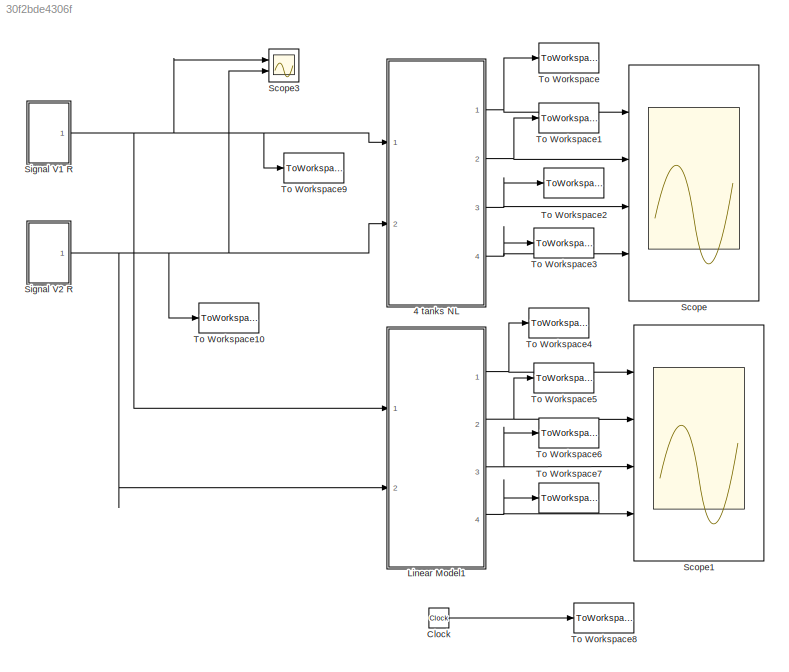
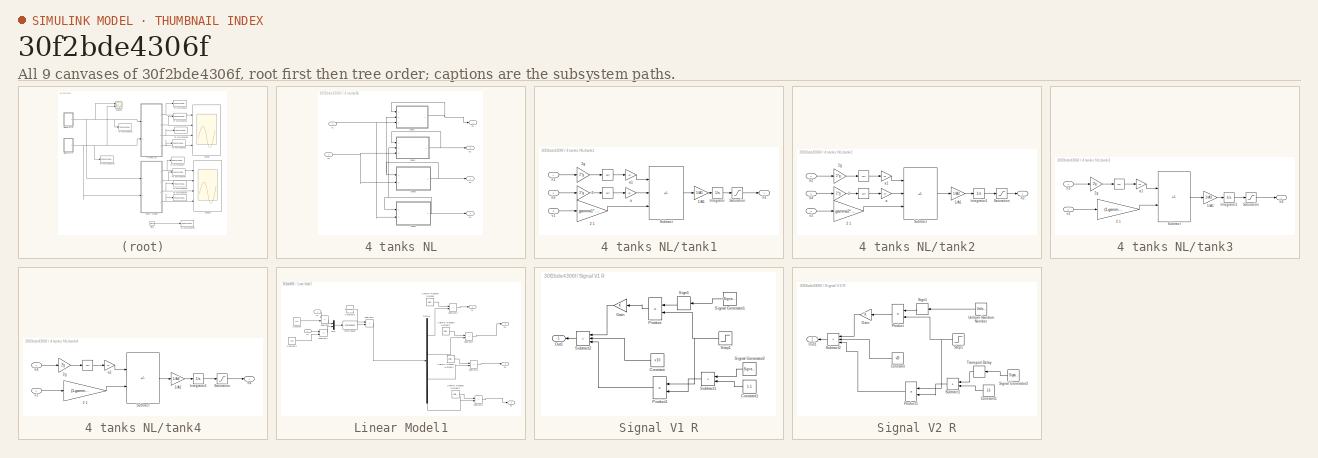
[diagram: thumbnail index - all 9 canvases of the model, root first then tree order]
MODEL slx_30f2bde4306f
KIND model
CONFIG AbsTol = auto
CONFIG EnableMultiTasking = on
CONFIG FixedStep = Ts
CONFIG MaxStep = auto
CONFIG MinStep = auto
CONFIG RelTol = 1e-3
CONFIG SampleTimeConstraint = Unconstrained
CONFIG SolverName = ode45
CONFIG StartTime = 0.0
CONFIG StopTime = 600
BLOCK [SubSystem] 4 tanks NL
  Ports = [2, 4]
  RequestExecContextInheritance = off
BLOCK [Outport] 4 tanks NL/h1 
BLOCK [Outport] 4 tanks NL/h2 
  Port = 2
BLOCK [Outport] 4 tanks NL/h3 
  Port = 3
BLOCK [Outport] 4 tanks NL/h4 
  Port = 4
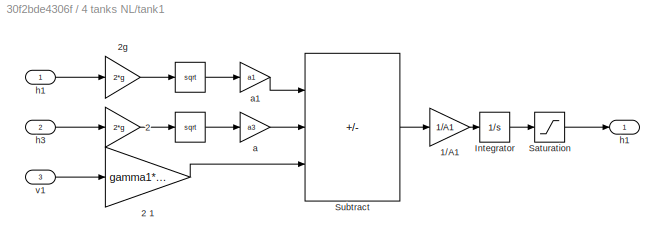
BLOCK [SubSystem] 4 tanks NL/tank1
  Ports = [3, 1]
  RequestExecContextInheritance = off
BLOCK [Math] 4 tanks NL/tank1/ 
  Operator = sqrt
  Ports = [1, 1]
  SignedPower = on
BLOCK [Math] 4 tanks NL/tank1/   
  Operator = sqrt
  Ports = [1, 1]
  SignedPower = on
BLOCK [Gain] 4 tanks NL/tank1/1//A1
  Gain = 1/A1
BLOCK [Gain] 4 tanks NL/tank1/2 
  Gain = 2*g
BLOCK [Gain] 4 tanks NL/tank1/2 1
  Gain = gamma1*k1
BLOCK [Gain] 4 tanks NL/tank1/2g
  Gain = 2*g
BLOCK [Integrator] 4 tanks NL/tank1/Integrator
  InitialCondition = h10
  Ports = [1, 1]
BLOCK [Saturate] 4 tanks NL/tank1/Saturation
  LowerLimit = 0
  UpperLimit = 20
BLOCK [Sum] 4 tanks NL/tank1/Subtract
  IconShape = rectangular
  Inputs = -++
  Ports = [3, 1]
BLOCK [Gain] 4 tanks NL/tank1/a
  Gain = a3
BLOCK [Gain] 4 tanks NL/tank1/a1
  Gain = a1
BLOCK [Inport] 4 tanks NL/tank1/h1
BLOCK [Outport] 4 tanks NL/tank1/h1 
BLOCK [Inport] 4 tanks NL/tank1/h3
  Port = 2
BLOCK [Inport] 4 tanks NL/tank1/v1
  Port = 3
BLOCK [SubSystem] 4 tanks NL/tank2
  Ports = [3, 1]
  RequestExecContextInheritance = off
BLOCK [Math] 4 tanks NL/tank2/ 
  Operator = sqrt
  Ports = [1, 1]
  SignedPower = on
BLOCK [Math] 4 tanks NL/tank2/   
  Operator = sqrt
  Ports = [1, 1]
  SignedPower = on
BLOCK [Gain] 4 tanks NL/tank2/1//A1
  Gain = 1/A2
BLOCK [Gain] 4 tanks NL/tank2/2 
  Gain = 2*g
BLOCK [Gain] 4 tanks NL/tank2/2 1
  Gain = gamma2*k2
BLOCK [Gain] 4 tanks NL/tank2/2g
  Gain = 2*g
BLOCK [Integrator] 4 tanks NL/tank2/Integrator1
  InitialCondition = h20
  Ports = [1, 1]
BLOCK [Saturate] 4 tanks NL/tank2/Saturation
  LowerLimit = 0
  UpperLimit = 20
BLOCK [Sum] 4 tanks NL/tank2/Subtract
  IconShape = rectangular
  Inputs = -++
  Ports = [3, 1]
BLOCK [Gain] 4 tanks NL/tank2/a
  Gain = a4
BLOCK [Gain] 4 tanks NL/tank2/a1
  Gain = a2
BLOCK [Inport] 4 tanks NL/tank2/h2
BLOCK [Outport] 4 tanks NL/tank2/h2 
BLOCK [Inport] 4 tanks NL/tank2/h4
  Port = 2
BLOCK [Inport] 4 tanks NL/tank2/v2
  Port = 3
BLOCK [SubSystem] 4 tanks NL/tank3
  Ports = [2, 1]
  RequestExecContextInheritance = off
BLOCK [Math] 4 tanks NL/tank3/ 
  Operator = sqrt
  Ports = [1, 1]
  SignedPower = on
BLOCK [Gain] 4 tanks NL/tank3/1//A1
  Gain = 1/A3
BLOCK [Gain] 4 tanks NL/tank3/2 1
  Gain = (1-gamma2)*k2
BLOCK [Gain] 4 tanks NL/tank3/2g
  Gain = 2*g
BLOCK [Integrator] 4 tanks NL/tank3/Integrator1
  InitialCondition = h30
  Ports = [1, 1]
BLOCK [Saturate] 4 tanks NL/tank3/Saturation
  LowerLimit = 0
  UpperLimit = 20
BLOCK [Sum] 4 tanks NL/tank3/Subtract
  IconShape = rectangular
  Inputs = -+
  Ports = [2, 1]
BLOCK [Gain] 4 tanks NL/tank3/a1
  Gain = a3
BLOCK [Inport] 4 tanks NL/tank3/h3
BLOCK [Outport] 4 tanks NL/tank3/h3 
BLOCK [Inport] 4 tanks NL/tank3/v2
  Port = 2
BLOCK [SubSystem] 4 tanks NL/tank4
  Ports = [2, 1]
  RequestExecContextInheritance = off
BLOCK [Math] 4 tanks NL/tank4/ 
  Operator = sqrt
  Ports = [1, 1]
  SignedPower = on
BLOCK [Gain] 4 tanks NL/tank4/1//A1
  Gain = 1/A4
BLOCK [Gain] 4 tanks NL/tank4/2 1
  Gain = (1-gamma1)*k1
BLOCK [Gain] 4 tanks NL/tank4/2g
  Gain = 2*g
BLOCK [Integrator] 4 tanks NL/tank4/Integrator1
  InitialCondition = h40
  Ports = [1, 1]
BLOCK [Saturate] 4 tanks NL/tank4/Saturation
  LowerLimit = 0
  UpperLimit = 20
BLOCK [Sum] 4 tanks NL/tank4/Subtract
  IconShape = rectangular
  Inputs = -+
  Ports = [2, 1]
BLOCK [Gain] 4 tanks NL/tank4/a1
  Gain = a4
BLOCK [Inport] 4 tanks NL/tank4/h4
BLOCK [Outport] 4 tanks NL/tank4/h4 
BLOCK [Inport] 4 tanks NL/tank4/v1
  Port = 2
BLOCK [Inport] 4 tanks NL/v1
BLOCK [Inport] 4 tanks NL/v2
  Port = 2
BLOCK [Clock] Clock
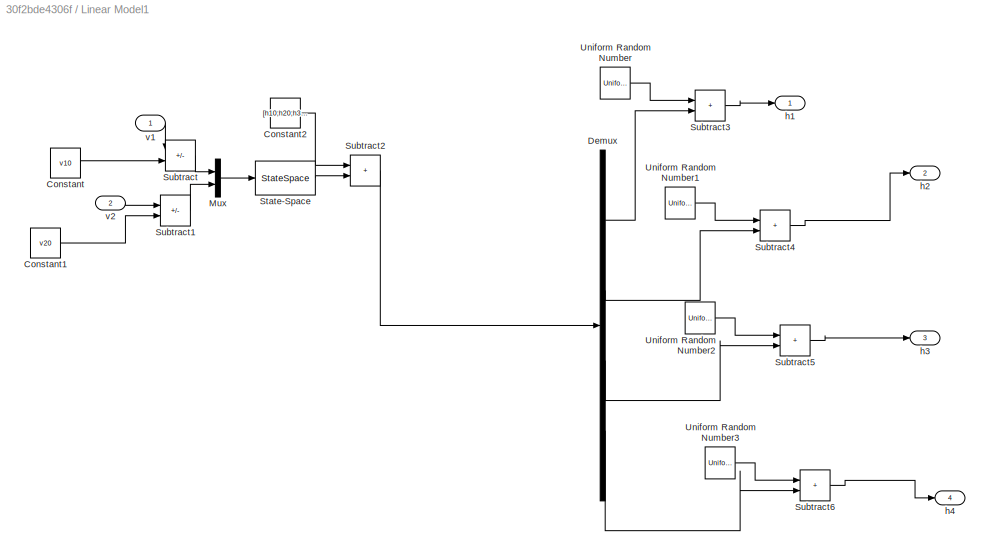
BLOCK [SubSystem] Linear Model1
  Ports = [2, 4]
  RequestExecContextInheritance = off
BLOCK [Constant] Linear Model1/Constant
  Value = v10
BLOCK [Constant] Linear Model1/Constant1
  Value = v20
BLOCK [Constant] Linear Model1/Constant2
  Value = [h10;h20;h30;h40]
BLOCK [Demux] Linear Model1/Demux
  Ports = [1, 4]
BLOCK [Mux] Linear Model1/Mux
  DisplayOption = bar
  Inputs = 2
  Ports = [2, 1]
BLOCK [StateSpace] Linear Model1/State-Space
  A = A
  B = B
  C = C
  D = D
  InitialCondition = 0
  Ports = [1, 1]
BLOCK [Sum] Linear Model1/Subtract
  IconShape = rectangular
  Inputs = +-
  Ports = [2, 1]
BLOCK [Sum] Linear Model1/Subtract1
  IconShape = rectangular
  Inputs = +-
  Ports = [2, 1]
BLOCK [Sum] Linear Model1/Subtract2
  IconShape = rectangular
  Ports = [2, 1]
BLOCK [Sum] Linear Model1/Subtract3
  IconShape = rectangular
  Ports = [2, 1]
BLOCK [Sum] Linear Model1/Subtract4
  IconShape = rectangular
  Ports = [2, 1]
BLOCK [Sum] Linear Model1/Subtract5
  IconShape = rectangular
  Ports = [2, 1]
BLOCK [Sum] Linear Model1/Subtract6
  IconShape = rectangular
  Ports = [2, 1]
BLOCK [UniformRandomNumber] Linear Model1/Uniform Random Number
  Maximum = de
  Minimum = -de
  SampleTime = Ts
  Seed = seed(1)
BLOCK [UniformRandomNumber] Linear Model1/Uniform Random Number1
  Maximum = de
  Minimum = -de
  SampleTime = Ts
  Seed = seed(2)
BLOCK [UniformRandomNumber] Linear Model1/Uniform Random Number2
  Maximum = de
  Minimum = -de
  SampleTime = Ts
  Seed = seed(3)
BLOCK [UniformRandomNumber] Linear Model1/Uniform Random Number3
  Maximum = de
  Minimum = -de
  SampleTime = Ts
  Seed = seed(4)
BLOCK [Outport] Linear Model1/h1
BLOCK [Outport] Linear Model1/h2
  Port = 2
BLOCK [Outport] Linear Model1/h3
  Port = 3
BLOCK [Outport] Linear Model1/h4
  Port = 4
BLOCK [Inport] Linear Model1/v1
BLOCK [Inport] Linear Model1/v2
  Port = 2
BLOCK [Scope] Scope
  Floating = off
  NumInputPorts = 4
  Ports = [4]
  ScopeSpecificationString = Simulink.scopes.TimeScopeBlockCfg('CurrentConfiguration', extmgr.ConfigurationSet(extmgr.Configuration('Core','General UI',true),extmgr.Configuration('Core','Source UI',true),extmgr.Configuration('Sources','WiredSimulink',true,'DataLogging',true,'DataLoggingVariableName','levels','DataLoggingSaveFormat','StructureWithTime','DataLoggingDecimation','1','DataLoggingDecimateData',true),extmgr.Configur...<+3668ch>
BLOCK [Scope] Scope1
  Floating = off
  NumInputPorts = 4
  Ports = [4]
  ScopeSpecificationString = Simulink.scopes.TimeScopeBlockCfg('CurrentConfiguration', extmgr.ConfigurationSet(extmgr.Configuration('Core','General UI',true),extmgr.Configuration('Core','Source UI',true),extmgr.Configuration('Sources','WiredSimulink',true,'DataLogging',true,'DataLoggingVariableName','levels1','DataLoggingSaveFormat','StructureWithTime','DataLoggingDecimation','1','DataLoggingDecimateData',true),extmgr.Configu...<+3677ch>
BLOCK [Scope] Scope3
  Floating = off
  NumInputPorts = 2
  Ports = [2]
  ScopeSpecificationString = Simulink.scopes.TimeScopeBlockCfg('CurrentConfiguration', extmgr.ConfigurationSet(extmgr.Configuration('Core','General UI',true),extmgr.Configuration('Core','Source UI',true),extmgr.Configuration('Sources','WiredSimulink',true,'DataLoggingSaveFormat','StructureWithTime','DataLoggingLimitDataPoints',true,'DataLoggingDecimation','1','DataLoggingDecimateData',true),extmgr.Configuration('Visuals','Tim...<+2315ch>
BLOCK [SubSystem] Signal V1 R
  NameLocation = top
  Ports = [0, 1]
  RequestExecContextInheritance = off
BLOCK [Constant] Signal V1 R/Constant
  Value = v10
BLOCK [Constant] Signal V1 R/Constant1
  Value = 1.1
BLOCK [Gain] Signal V1 R/Gain
  NameLocation = top
BLOCK [Outport] Signal V1 R/Out1
BLOCK [Product] Signal V1 R/Product
  Ports = [2, 1]
  RndMeth = Zero
BLOCK [Product] Signal V1 R/Product1
  Ports = [2, 1]
  RndMeth = Zero
BLOCK [Signum] Signal V1 R/Sign1
BLOCK [SignalGenerator] Signal V1 R/Signal Generator1
  Amplitude = 1.8
  Frequency = 200
  NameLocation = top
  Ports = [0, 1]
  WaveForm = random
BLOCK [SignalGenerator] Signal V1 R/Signal Generator2
  Amplitude = 1.1
  Frequency = 0.005
  NameLocation = top
  Ports = [0, 1]
  WaveForm = sawtooth
BLOCK [Step] Signal V1 R/Step1
  SampleTime = 0
  Time = 10
BLOCK [Sum] Signal V1 R/Subtract1
  IconShape = rectangular
  Ports = [2, 1]
BLOCK [Sum] Signal V1 R/Subtract2
  IconShape = rectangular
  Inputs = +++
  Ports = [3, 1]
BLOCK [SubSystem] Signal V2 R
  NameLocation = top
  Ports = [0, 1]
  RequestExecContextInheritance = off
BLOCK [Constant] Signal V2 R/Constant
  Value = v20
BLOCK [Constant] Signal V2 R/Constant1
  Value = 1.6
BLOCK [Gain] Signal V2 R/Gain
  NameLocation = top
BLOCK [Outport] Signal V2 R/Out1
BLOCK [Product] Signal V2 R/Product
  Ports = [2, 1]
  RndMeth = Zero
BLOCK [Product] Signal V2 R/Product1
  Ports = [2, 1]
  RndMeth = Zero
BLOCK [Signum] Signal V2 R/Sign1
BLOCK [SignalGenerator] Signal V2 R/Signal Generator2
  Amplitude = 1.6
  Frequency = 0.005
  NameLocation = top
  Ports = [0, 1]
  WaveForm = sawtooth
BLOCK [Step] Signal V2 R/Step1
  SampleTime = 0
  Time = 10
BLOCK [Sum] Signal V2 R/Subtract1
  IconShape = rectangular
  Ports = [2, 1]
BLOCK [Sum] Signal V2 R/Subtract2
  IconShape = rectangular
  Inputs = +++
  Ports = [3, 1]
BLOCK [TransportDelay] Signal V2 R/Transport Delay
  DelayTime = 100
  NameLocation = top
  Ports = [1, 1]
BLOCK [UniformRandomNumber] Signal V2 R/Uniform Random Number
  NameLocation = top
  SampleTime = Ts
BLOCK [ToWorkspace] To Workspace
  MaxDataPoints = inf
  Ports = [1]
  SampleTime = Ts
  VariableName = h1
BLOCK [ToWorkspace] To Workspace1
  MaxDataPoints = inf
  Ports = [1]
  SampleTime = Ts
  VariableName = h2
BLOCK [ToWorkspace] To Workspace10
  MaxDataPoints = inf
  Ports = [1]
  SampleTime = Ts
  VariableName = v2
BLOCK [ToWorkspace] To Workspace2
  MaxDataPoints = inf
  Ports = [1]
  SampleTime = Ts
  VariableName = h3
BLOCK [ToWorkspace] To Workspace3
  MaxDataPoints = inf
  Ports = [1]
  SampleTime = Ts
  VariableName = h4
BLOCK [ToWorkspace] To Workspace4
  MaxDataPoints = inf
  Ports = [1]
  SampleTime = Ts
  VariableName = h1_lin
BLOCK [ToWorkspace] To Workspace5
  MaxDataPoints = inf
  Ports = [1]
  SampleTime = Ts
  VariableName = h2_lin
BLOCK [ToWorkspace] To Workspace6
  MaxDataPoints = inf
  Ports = [1]
  SampleTime = Ts
  VariableName = h3_lin
BLOCK [ToWorkspace] To Workspace7
  MaxDataPoints = inf
  Ports = [1]
  SampleTime = Ts
  VariableName = h4_lin
BLOCK [ToWorkspace] To Workspace8
  MaxDataPoints = inf
  Ports = [1]
  SampleTime = Ts
  VariableName = time
BLOCK [ToWorkspace] To Workspace9
  MaxDataPoints = inf
  Ports = [1]
  SampleTime = Ts
  VariableName = v1
LINE 4 tanks NL/tank1/   :1 -> 4 tanks NL/tank1/a:1
LINE 4 tanks NL/tank1/ :1 -> 4 tanks NL/tank1/a1:1
LINE 4 tanks NL/tank1/1//A1:1 -> 4 tanks NL/tank1/Integrator:1
LINE 4 tanks NL/tank1/2 1:1 -> 4 tanks NL/tank1/Subtract:3
LINE 4 tanks NL/tank1/2 :1 -> 4 tanks NL/tank1/   :1
LINE 4 tanks NL/tank1/2g:1 -> 4 tanks NL/tank1/ :1
LINE 4 tanks NL/tank1/Integrator:1 -> 4 tanks NL/tank1/Saturation:1
LINE 4 tanks NL/tank1/Saturation:1 -> 4 tanks NL/tank1/h1 :1
LINE 4 tanks NL/tank1/Subtract:1 -> 4 tanks NL/tank1/1//A1:1
LINE 4 tanks NL/tank1/a1:1 -> 4 tanks NL/tank1/Subtract:1
LINE 4 tanks NL/tank1/a:1 -> 4 tanks NL/tank1/Subtract:2
LINE 4 tanks NL/tank1/h1:1 -> 4 tanks NL/tank1/2g:1
LINE 4 tanks NL/tank1/h3:1 -> 4 tanks NL/tank1/2 :1
LINE 4 tanks NL/tank1/v1:1 -> 4 tanks NL/tank1/2 1:1
NET 4 tanks NL/tank1:1 -> 4 tanks NL/h1 :1, 4 tanks NL/tank1:1
LINE 4 tanks NL/tank2/   :1 -> 4 tanks NL/tank2/a:1
LINE 4 tanks NL/tank2/ :1 -> 4 tanks NL/tank2/a1:1
LINE 4 tanks NL/tank2/1//A1:1 -> 4 tanks NL/tank2/Integrator1:1
LINE 4 tanks NL/tank2/2 1:1 -> 4 tanks NL/tank2/Subtract:3
LINE 4 tanks NL/tank2/2 :1 -> 4 tanks NL/tank2/   :1
LINE 4 tanks NL/tank2/2g:1 -> 4 tanks NL/tank2/ :1
LINE 4 tanks NL/tank2/Integrator1:1 -> 4 tanks NL/tank2/Saturation:1
LINE 4 tanks NL/tank2/Saturation:1 -> 4 tanks NL/tank2/h2 :1
LINE 4 tanks NL/tank2/Subtract:1 -> 4 tanks NL/tank2/1//A1:1
LINE 4 tanks NL/tank2/a1:1 -> 4 tanks NL/tank2/Subtract:1
LINE 4 tanks NL/tank2/a:1 -> 4 tanks NL/tank2/Subtract:2
LINE 4 tanks NL/tank2/h2:1 -> 4 tanks NL/tank2/2g:1
LINE 4 tanks NL/tank2/h4:1 -> 4 tanks NL/tank2/2 :1
LINE 4 tanks NL/tank2/v2:1 -> 4 tanks NL/tank2/2 1:1
NET 4 tanks NL/tank2:1 -> 4 tanks NL/h2 :1, 4 tanks NL/tank2:1
LINE 4 tanks NL/tank3/ :1 -> 4 tanks NL/tank3/a1:1
LINE 4 tanks NL/tank3/1//A1:1 -> 4 tanks NL/tank3/Integrator1:1
LINE 4 tanks NL/tank3/2 1:1 -> 4 tanks NL/tank3/Subtract:2
LINE 4 tanks NL/tank3/2g:1 -> 4 tanks NL/tank3/ :1
LINE 4 tanks NL/tank3/Integrator1:1 -> 4 tanks NL/tank3/Saturation:1
LINE 4 tanks NL/tank3/Saturation:1 -> 4 tanks NL/tank3/h3 :1
LINE 4 tanks NL/tank3/Subtract:1 -> 4 tanks NL/tank3/1//A1:1
LINE 4 tanks NL/tank3/a1:1 -> 4 tanks NL/tank3/Subtract:1
LINE 4 tanks NL/tank3/h3:1 -> 4 tanks NL/tank3/2g:1
LINE 4 tanks NL/tank3/v2:1 -> 4 tanks NL/tank3/2 1:1
NET 4 tanks NL/tank3:1 -> 4 tanks NL/h3 :1, 4 tanks NL/tank1:2, 4 tanks NL/tank3:1
LINE 4 tanks NL/tank4/ :1 -> 4 tanks NL/tank4/a1:1
LINE 4 tanks NL/tank4/1//A1:1 -> 4 tanks NL/tank4/Integrator1:1
LINE 4 tanks NL/tank4/2 1:1 -> 4 tanks NL/tank4/Subtract:2
LINE 4 tanks NL/tank4/2g:1 -> 4 tanks NL/tank4/ :1
LINE 4 tanks NL/tank4/Integrator1:1 -> 4 tanks NL/tank4/Saturation:1
LINE 4 tanks NL/tank4/Saturation:1 -> 4 tanks NL/tank4/h4 :1
LINE 4 tanks NL/tank4/Subtract:1 -> 4 tanks NL/tank4/1//A1:1
LINE 4 tanks NL/tank4/a1:1 -> 4 tanks NL/tank4/Subtract:1
LINE 4 tanks NL/tank4/h4:1 -> 4 tanks NL/tank4/2g:1
LINE 4 tanks NL/tank4/v1:1 -> 4 tanks NL/tank4/2 1:1
NET 4 tanks NL/tank4:1 -> 4 tanks NL/h4 :1, 4 tanks NL/tank2:2, 4 tanks NL/tank4:1
NET 4 tanks NL/v1:1 -> 4 tanks NL/tank1:3, 4 tanks NL/tank4:2
NET 4 tanks NL/v2:1 -> 4 tanks NL/tank2:3, 4 tanks NL/tank3:2
NET 4 tanks NL:1 -> Scope:1, To Workspace:1
NET 4 tanks NL:2 -> Scope:2, To Workspace1:1
NET 4 tanks NL:3 -> Scope:3, To Workspace2:1
NET 4 tanks NL:4 -> Scope:4, To Workspace3:1
LINE Clock:1 -> To Workspace8:1
LINE Linear Model1/Constant1:1 -> Linear Model1/Subtract1:2
LINE Linear Model1/Constant2:1 -> Linear Model1/Subtract2:1
LINE Linear Model1/Constant:1 -> Linear Model1/Subtract:2
LINE Linear Model1/Demux:1 -> Linear Model1/Subtract3:2
LINE Linear Model1/Demux:2 -> Linear Model1/Subtract4:2
LINE Linear Model1/Demux:3 -> Linear Model1/Subtract5:2
LINE Linear Model1/Demux:4 -> Linear Model1/Subtract6:2
LINE Linear Model1/Mux:1 -> Linear Model1/State-Space:1
LINE Linear Model1/State-Space:1 -> Linear Model1/Subtract2:2
LINE Linear Model1/Subtract1:1 -> Linear Model1/Mux:2
LINE Linear Model1/Subtract2:1 -> Linear Model1/Demux:1
LINE Linear Model1/Subtract3:1 -> Linear Model1/h1:1
LINE Linear Model1/Subtract4:1 -> Linear Model1/h2:1
LINE Linear Model1/Subtract5:1 -> Linear Model1/h3:1
LINE Linear Model1/Subtract6:1 -> Linear Model1/h4:1
LINE Linear Model1/Subtract:1 -> Linear Model1/Mux:1
LINE Linear Model1/Uniform Random Number1:1 -> Linear Model1/Subtract4:1
LINE Linear Model1/Uniform Random Number2:1 -> Linear Model1/Subtract5:1
LINE Linear Model1/Uniform Random Number3:1 -> Linear Model1/Subtract6:1
LINE Linear Model1/Uniform Random Number:1 -> Linear Model1/Subtract3:1
LINE Linear Model1/v1:1 -> Linear Model1/Subtract:1
LINE Linear Model1/v2:1 -> Linear Model1/Subtract1:1
NET Linear Model1:1 -> Scope1:1, To Workspace4:1
NET Linear Model1:2 -> Scope1:2, To Workspace5:1
NET Linear Model1:3 -> Scope1:3, To Workspace6:1
NET Linear Model1:4 -> Scope1:4, To Workspace7:1
LINE Signal V1 R/Constant1:1 -> Signal V1 R/Subtract1:2
LINE Signal V1 R/Constant:1 -> Signal V1 R/Subtract2:2
LINE Signal V1 R/Gain:1 -> Signal V1 R/Subtract2:1
LINE Signal V1 R/Product1:1 -> Signal V1 R/Subtract2:3
LINE Signal V1 R/Product:1 -> Signal V1 R/Gain:1
LINE Signal V1 R/Sign1:1 -> Signal V1 R/Product:1
LINE Signal V1 R/Signal Generator1:1 -> Signal V1 R/Sign1:1
LINE Signal V1 R/Signal Generator2:1 -> Signal V1 R/Subtract1:1
NET Signal V1 R/Step1:1 -> Signal V1 R/Product1:1, Signal V1 R/Product:2
LINE Signal V1 R/Subtract1:1 -> Signal V1 R/Product1:2
LINE Signal V1 R/Subtract2:1 -> Signal V1 R/Out1:1
NET Signal V1 R:1 -> 4 tanks NL:1, Linear Model1:1, Scope3:1, To Workspace9:1
LINE Signal V2 R/Constant1:1 -> Signal V2 R/Subtract1:2
LINE Signal V2 R/Constant:1 -> Signal V2 R/Subtract2:2
LINE Signal V2 R/Gain:1 -> Signal V2 R/Subtract2:1
LINE Signal V2 R/Product1:1 -> Signal V2 R/Subtract2:3
LINE Signal V2 R/Product:1 -> Signal V2 R/Gain:1
LINE Signal V2 R/Sign1:1 -> Signal V2 R/Product:1
LINE Signal V2 R/Signal Generator2:1 -> Signal V2 R/Transport Delay:1
NET Signal V2 R/Step1:1 -> Signal V2 R/Product1:1, Signal V2 R/Product:2
LINE Signal V2 R/Subtract1:1 -> Signal V2 R/Product1:2
LINE Signal V2 R/Subtract2:1 -> Signal V2 R/Out1:1
LINE Signal V2 R/Transport Delay:1 -> Signal V2 R/Subtract1:1
LINE Signal V2 R/Uniform Random Number:1 -> Signal V2 R/Sign1:1
NET Signal V2 R:1 -> 4 tanks NL:2, Linear Model1:2, Scope3:2, To Workspace10:1
note: NET lines group one-source signal fan-out (src -> all destinations, sorted); 1:1 wires keep LINE
